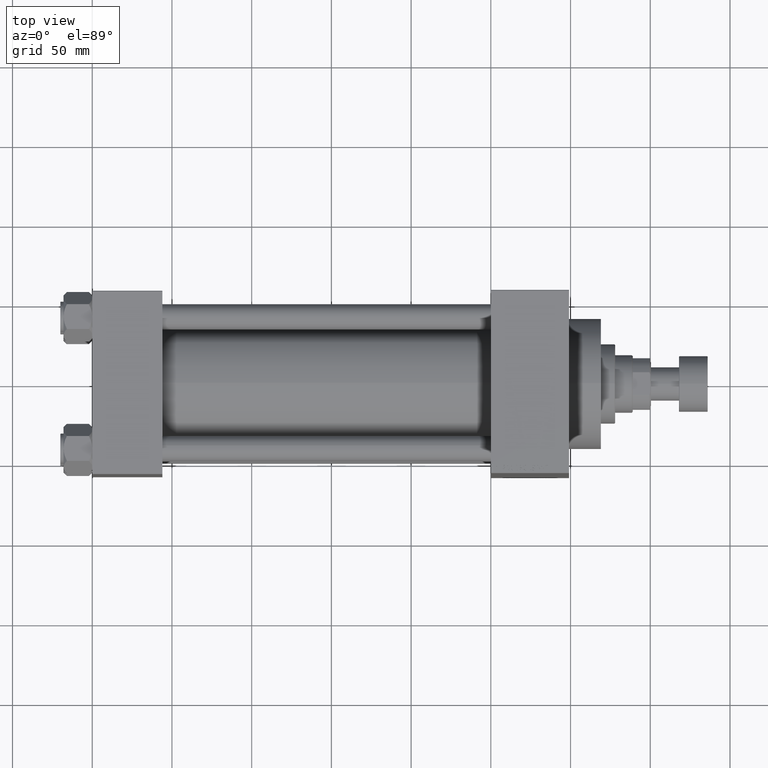
[diagram: clean part render]
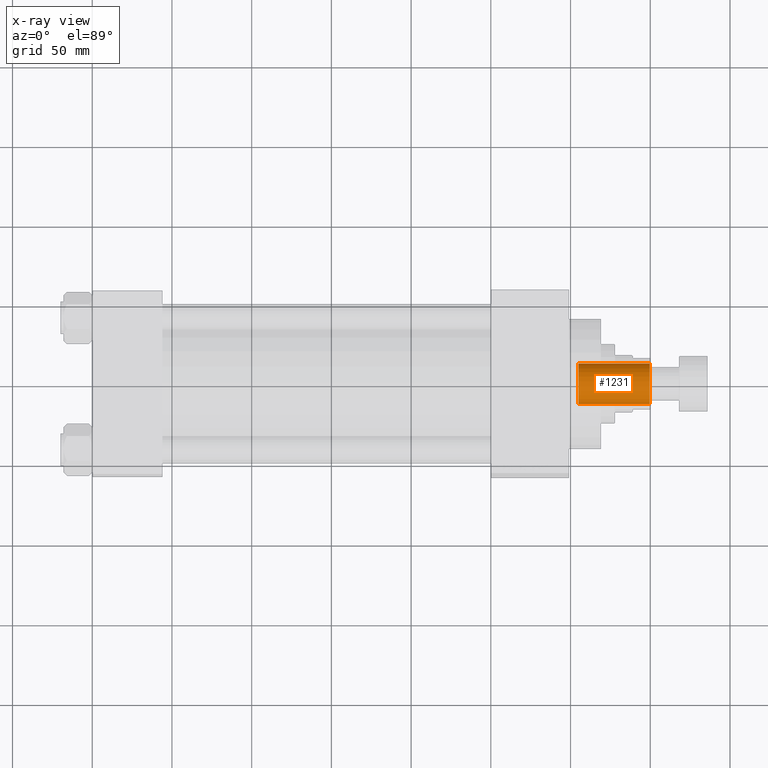
[diagram: x-ray — body ghosted, one internal face saturated and labeled with its STEP entity id]
A machine part, top view, then the same camera in x-ray: the body is ghosted and one INTERNAL B-rep face — a face not visible from any outside direction — is saturated and labeled: STEP entity #1231.
In plain terms, the highlighted cylindrical surface (edge-blend (fillet) strip) has radius 12.75 mm, axis along (1, 0, 0).
Its self-contained STEP definition (entity closure, byte-faithful):
#1231 = ADVANCED_FACE ( 'NONE', ( #27505 ), #27992, .F. ) ;
#1729 = AXIS2_PLACEMENT_3D ( 'NONE', #47356, #39765, #43913 ) ;
#3418 = CARTESIAN_POINT ( 'NONE',  ( -12.74999999999998934, 1.561424668912873928E-15, 261.0000000000000000 ) ) ;
#4066 = VERTEX_POINT ( 'NONE', #46414 ) ;
#4563 = DIRECTION ( 'NONE',  ( 1.000000000000000000, 0.000000000000000000, 0.000000000000000000 ) ) ;
#5990 = CARTESIAN_POINT ( 'NONE',  ( 0.000000000000000000, 0.000000000000000000, 306.0000000000000000 ) ) ;
#6772 = DIRECTION ( 'NONE',  ( -0.000000000000000000, -0.000000000000000000, 1.000000000000000000 ) ) ;
#6907 = CARTESIAN_POINT ( 'NONE',  ( 12.74999999999998934, 0.000000000000000000, 261.0000000000000000 ) ) ;
#7027 = DIRECTION ( 'NONE',  ( 0.000000000000000000, 0.000000000000000000, 1.000000000000000000 ) ) ;
#8316 = EDGE_CURVE ( 'NONE', #43709, #26048, #11847, .T. ) ;
#10944 = AXIS2_PLACEMENT_3D ( 'NONE', #5990, #30950, #39497 ) ;
#11847 = CIRCLE ( 'NONE', #1729, 12.74999999999998934 ) ;
#12630 = VECTOR ( 'NONE', #6772, 1000.000000000000000 ) ;
#12841 = ORIENTED_EDGE ( 'NONE', *, *, #24540, .T. ) ;
#13473 = EDGE_CURVE ( 'NONE', #15964, #4066, #45632, .T. ) ;
#14100 = LINE ( 'NONE', #32225, #12630 ) ;
#15964 = VERTEX_POINT ( 'NONE', #32661 ) ;
#18909 = ORIENTED_EDGE ( 'NONE', *, *, #34837, .F. ) ;
#20898 = ORIENTED_EDGE ( 'NONE', *, *, #13473, .T. ) ;
#21388 = CARTESIAN_POINT ( 'NONE',  ( 12.74999999999999112, 0.000000000000000000, 306.0000000000000000 ) ) ;
#24540 = EDGE_CURVE ( 'NONE', #43709, #15964, #14100, .T. ) ;
#24570 = VECTOR ( 'NONE', #44396, 1000.000000000000000 ) ;
#26048 = VERTEX_POINT ( 'NONE', #6907 ) ;
#26918 = EDGE_LOOP ( 'NONE', ( #47174, #12841, #20898, #18909 ) ) ;
#27505 = FACE_OUTER_BOUND ( 'NONE', #26918, .T. ) ;
#27992 = CYLINDRICAL_SURFACE ( 'NONE', #10944, 12.74999999999999112 ) ;
#30950 = DIRECTION ( 'NONE',  ( -0.000000000000000000, -0.000000000000000000, 1.000000000000000000 ) ) ;
#32225 = CARTESIAN_POINT ( 'NONE',  ( -12.74999999999999112, 1.561424668912874125E-15, 306.0000000000000000 ) ) ;
#32661 = CARTESIAN_POINT ( 'NONE',  ( -12.74999999999999112, 1.561424668912874125E-15, 305.6999999999999886 ) ) ;
#34837 = EDGE_CURVE ( 'NONE', #26048, #4066, #43921, .T. ) ;
#39497 = DIRECTION ( 'NONE',  ( 1.000000000000000000, 0.000000000000000000, 0.000000000000000000 ) ) ;
#39765 = DIRECTION ( 'NONE',  ( -0.000000000000000000, -0.000000000000000000, 1.000000000000000000 ) ) ;
#43709 = VERTEX_POINT ( 'NONE', #3418 ) ;
#43913 = DIRECTION ( 'NONE',  ( 1.000000000000000000, 0.000000000000000000, 0.000000000000000000 ) ) ;
#43921 = LINE ( 'NONE', #21388, #24570 ) ;
#44224 = CARTESIAN_POINT ( 'NONE',  ( 0.000000000000000000, 0.000000000000000000, 305.6999999999999886 ) ) ;
#44396 = DIRECTION ( 'NONE',  ( -0.000000000000000000, -0.000000000000000000, 1.000000000000000000 ) ) ;
#45632 = CIRCLE ( 'NONE', #47978, 12.74999999999999112 ) ;
#46414 = CARTESIAN_POINT ( 'NONE',  ( 12.74999999999999112, 0.000000000000000000, 305.6999999999999886 ) ) ;
#47174 = ORIENTED_EDGE ( 'NONE', *, *, #8316, .F. ) ;
#47356 = CARTESIAN_POINT ( 'NONE',  ( 0.000000000000000000, 0.000000000000000000, 261.0000000000000000 ) ) ;
#47978 = AXIS2_PLACEMENT_3D ( 'NONE', #44224, #7027, #4563 ) ;